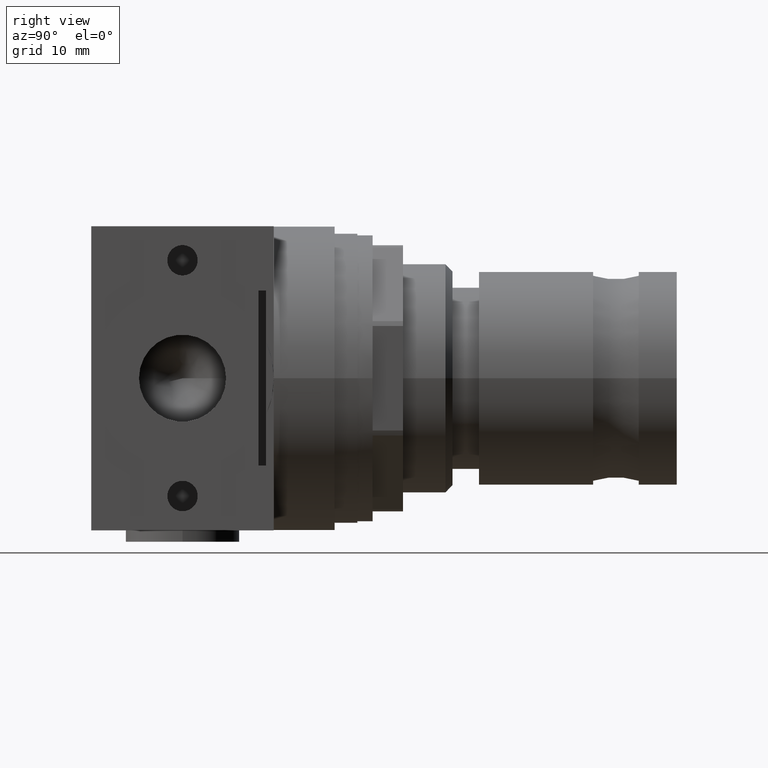
[diagram: clean part render]
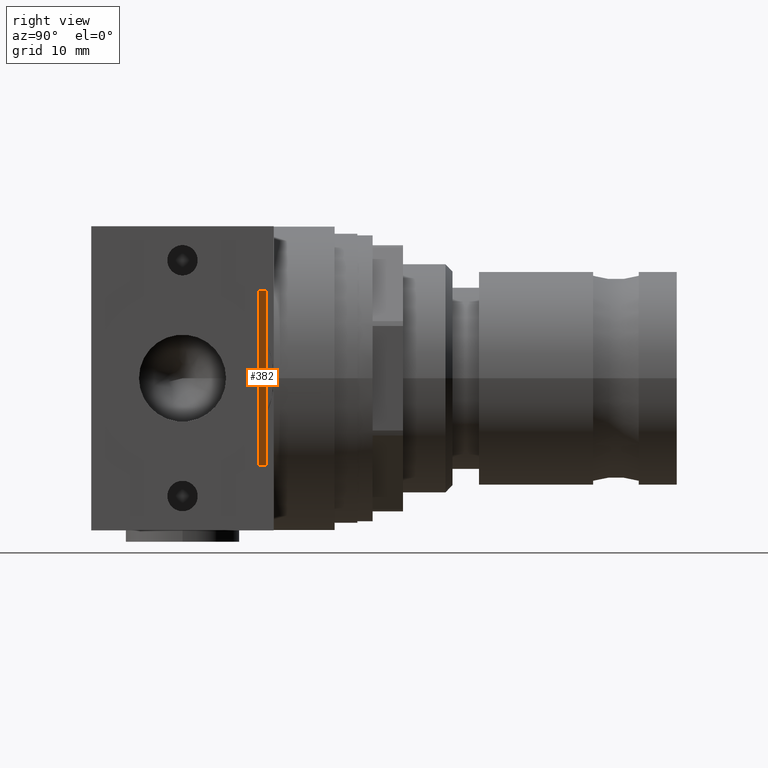
[diagram: same view with one face highlighted and labeled with its STEP entity id]
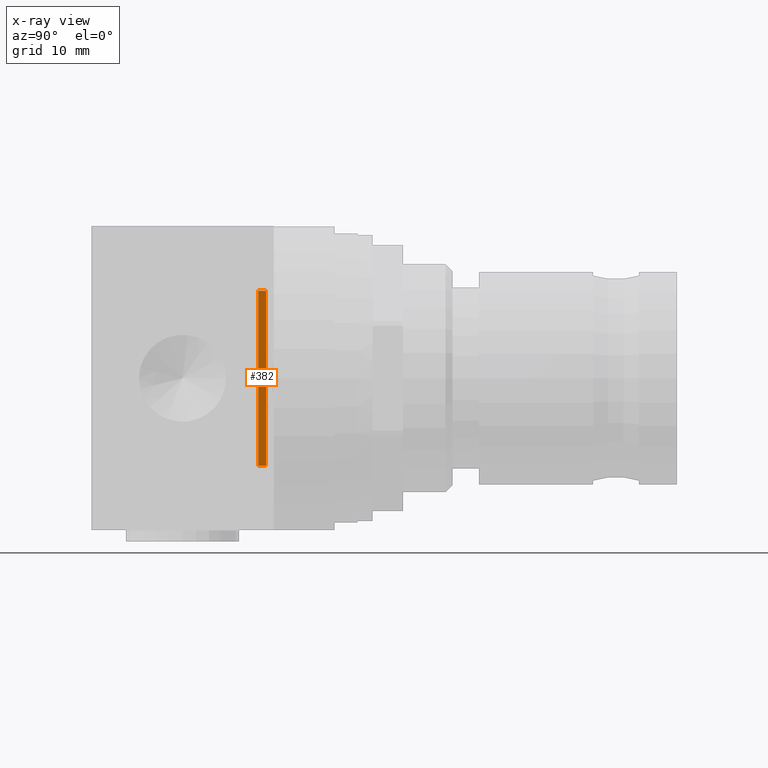
[diagram: x-ray of the same camera — body ghosted, the highlighted face saturated]
A machine part, right view. The second image highlights one B-rep face of the part: STEP entity #382.
The next image is the same camera in x-ray: the body ghosted, the highlighted face saturated — about 0% of this face is hidden behind the body in this view.
In plain terms, the highlighted planar face has unit normal (1, 0, 0).
Its self-contained STEP definition (entity closure, byte-faithful):
#382 = ADVANCED_FACE( '', ( #796 ), #797, .T. );
#796 = FACE_OUTER_BOUND( '', #1241, .T. );
#797 = PLANE( '', #1242 );
#1241 = EDGE_LOOP( '', ( #2070, #2071, #2072, #2073 ) );
#1242 = AXIS2_PLACEMENT_3D( '', #2074, #2075, #2076 );
#2070 = ORIENTED_EDGE( '', *, *, #2598, .T. );
#2071 = ORIENTED_EDGE( '', *, *, #2569, .T. );
#2072 = ORIENTED_EDGE( '', *, *, #2442, .T. );
#2073 = ORIENTED_EDGE( '', *, *, #2744, .T. );
#2074 = CARTESIAN_POINT( '', ( 10.0000000000000, 0.000000000000000, 0.000000000000000 ) );
#2075 = DIRECTION( '', ( 1.00000000000000, 0.000000000000000, 0.000000000000000 ) );
#2076 = DIRECTION( '', ( 0.000000000000000, 0.000000000000000, -1.00000000000000 ) );
#2442 = EDGE_CURVE( '', #2852, #2850, #2853, .T. );
#2569 = EDGE_CURVE( '', #3070, #2852, #3071, .T. );
#2598 = EDGE_CURVE( '', #3117, #3070, #3118, .T. );
#2744 = EDGE_CURVE( '', #2850, #3117, #3316, .T. );
#2850 = VERTEX_POINT( '', #3432 );
#2852 = VERTEX_POINT( '', #3435 );
#2853 = LINE( '', #3436, #3437 );
#3070 = VERTEX_POINT( '', #3714 );
#3071 = LINE( '', #3715, #3716 );
#3117 = VERTEX_POINT( '', #3775 );
#3118 = LINE( '', #3776, #3777 );
#3316 = LINE( '', #4049, #4050 );
#3432 = CARTESIAN_POINT( '', ( 10.0000000000000, 11.0000000000000, -11.5000000000000 ) );
#3435 = CARTESIAN_POINT( '', ( 10.0000000000000, 10.0000000000000, -11.5000000000000 ) );
#3436 = CARTESIAN_POINT( '', ( 10.0000000000000, 10.0000000000000, -11.5000000000000 ) );
#3437 = VECTOR( '', #4169, 1000.00000000000 );
#3714 = CARTESIAN_POINT( '', ( 10.0000000000000, 10.0000000000000, 11.5000000000000 ) );
#3715 = CARTESIAN_POINT( '', ( 10.0000000000000, 10.0000000000000, 11.5000000000000 ) );
#3716 = VECTOR( '', #4353, 1000.00000000000 );
#3775 = CARTESIAN_POINT( '', ( 10.0000000000000, 11.0000000000000, 11.5000000000000 ) );
#3776 = CARTESIAN_POINT( '', ( 10.0000000000000, 11.0000000000000, 11.5000000000000 ) );
#3777 = VECTOR( '', #4388, 1000.00000000000 );
#4049 = CARTESIAN_POINT( '', ( 10.0000000000000, 11.0000000000000, -11.5000000000000 ) );
#4050 = VECTOR( '', #4526, 1000.00000000000 );
#4169 = DIRECTION( '', ( 0.000000000000000, 1.00000000000000, 0.000000000000000 ) );
#4353 = DIRECTION( '', ( 0.000000000000000, 0.000000000000000, -1.00000000000000 ) );
#4388 = DIRECTION( '', ( 0.000000000000000, -1.00000000000000, 0.000000000000000 ) );
#4526 = DIRECTION( '', ( 0.000000000000000, 0.000000000000000, 1.00000000000000 ) );